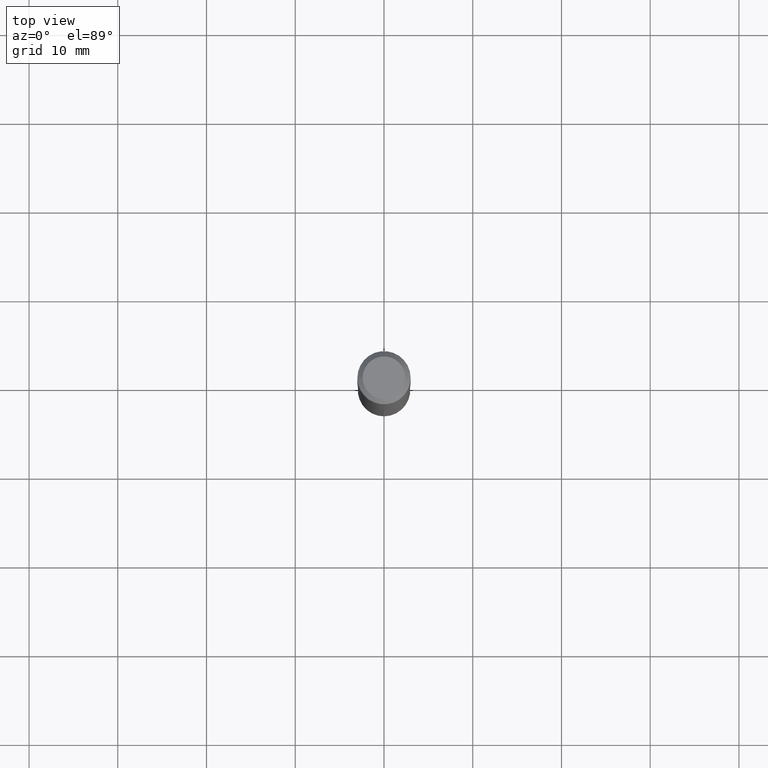
[diagram: clean part render]
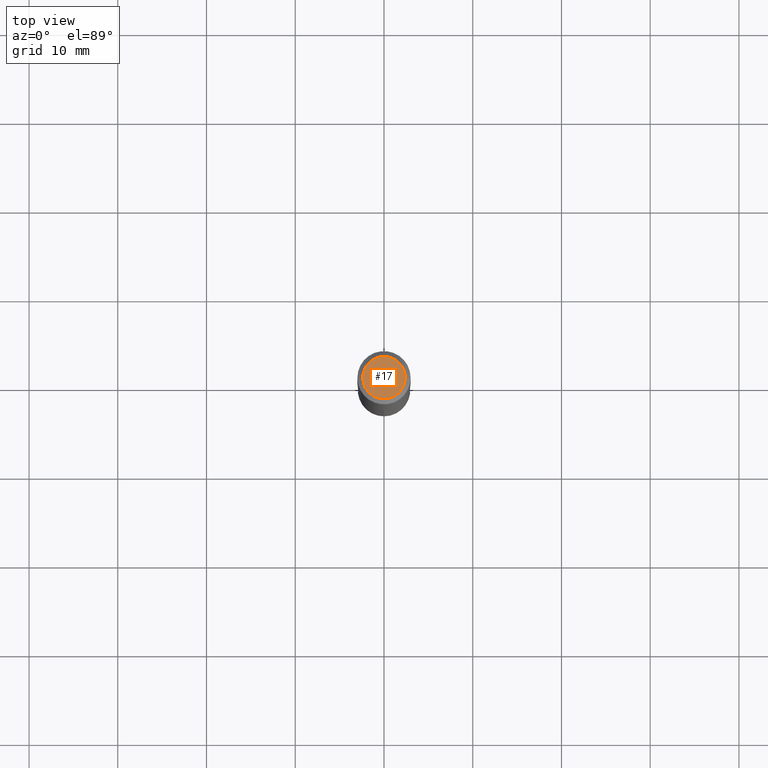
[diagram: same view with one face highlighted and labeled with its STEP entity id]
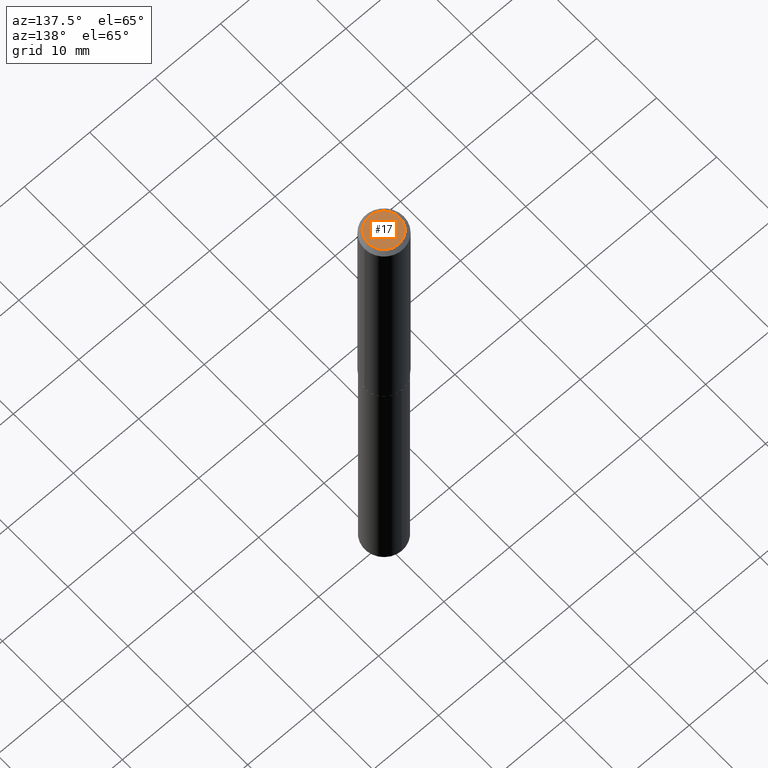
[diagram: same view with one face highlighted and labeled with its STEP entity id]
A machine part, top view. The second image highlights one B-rep face of the part: STEP entity #17.
A second angle (auxiliary view) of the same face is appended — the face is thin or edge-on in the first view.
In plain terms, the highlighted planar face has unit normal (0, -0, -1).
Its self-contained STEP definition (entity closure, byte-faithful):
#17 = ADVANCED_FACE ( 'NONE', ( #448 ), #293, .F. ) ;
#34 = CARTESIAN_POINT ( 'NONE',  ( -0.09447999999999998066, 7.009847083995354710E-16, -1.928573779297727792E-17 ) ) ;
#37 = CIRCLE ( 'NONE', #370, 0.09447999999999998066 ) ;
#50 = CARTESIAN_POINT ( 'NONE',  ( 0.09447999999999998066, -7.704367267948738690E-16, -1.928573779296752193E-17 ) ) ;
#59 = EDGE_LOOP ( 'NONE', ( #358, #425 ) ) ;
#62 = DIRECTION ( 'NONE',  ( -2.445468806185136597E-29, 3.491481338843145583E-15, 1.000000000000000000 ) ) ;
#88 = DIRECTION ( 'NONE',  ( 1.000000000000000000, -6.982962677686267499E-15, 4.875432709231658792E-29 ) ) ;
#96 = EDGE_CURVE ( 'NONE', #311, #278, #37, .T. ) ;
#106 = DIRECTION ( 'NONE',  ( 2.438088387897960049E-29, -3.491481338843145188E-15, -1.000000000000000000 ) ) ;
#113 = AXIS2_PLACEMENT_3D ( 'NONE', #332, #481, #380 ) ;
#245 = CARTESIAN_POINT ( 'NONE',  ( 4.716267017698007905E-46, -6.733579360998555036E-32, -1.928573779297252010E-17 ) ) ;
#260 = DIRECTION ( 'NONE',  ( -1.000000000000000000, 6.982962677686265922E-15, -4.876176775795935793E-29 ) ) ;
#268 = CIRCLE ( 'NONE', #113, 0.09447999999999998066 ) ;
#278 = VERTEX_POINT ( 'NONE', #50 ) ;
#280 = AXIS2_PLACEMENT_3D ( 'NONE', #413, #106, #260 ) ;
#293 = PLANE ( 'NONE',  #280 ) ;
#311 = VERTEX_POINT ( 'NONE', #34 ) ;
#332 = CARTESIAN_POINT ( 'NONE',  ( 4.716267017698007905E-46, -6.733579360998555036E-32, -1.928573779297252010E-17 ) ) ;
#335 = EDGE_CURVE ( 'NONE', #278, #311, #268, .T. ) ;
#358 = ORIENTED_EDGE ( 'NONE', *, *, #96, .T. ) ;
#370 = AXIS2_PLACEMENT_3D ( 'NONE', #245, #62, #88 ) ;
#380 = DIRECTION ( 'NONE',  ( 1.000000000000000000, -6.982962677686267499E-15, 4.875432709231658792E-29 ) ) ;
#413 = CARTESIAN_POINT ( 'NONE',  ( 2.358133508849003952E-46, -3.366789680499277518E-32, -9.642868896486260050E-18 ) ) ;
#425 = ORIENTED_EDGE ( 'NONE', *, *, #335, .T. ) ;
#448 = FACE_OUTER_BOUND ( 'NONE', #59, .T. ) ;
#481 = DIRECTION ( 'NONE',  ( -2.445468806185136597E-29, 3.491481338843145583E-15, 1.000000000000000000 ) ) ;